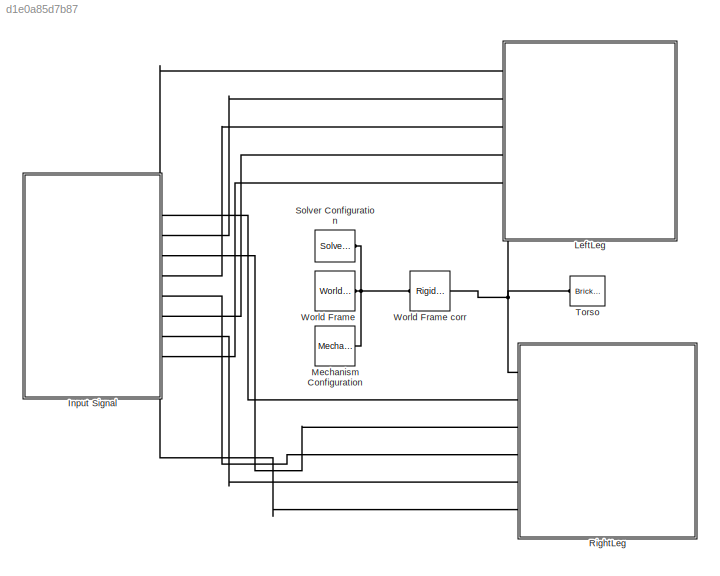
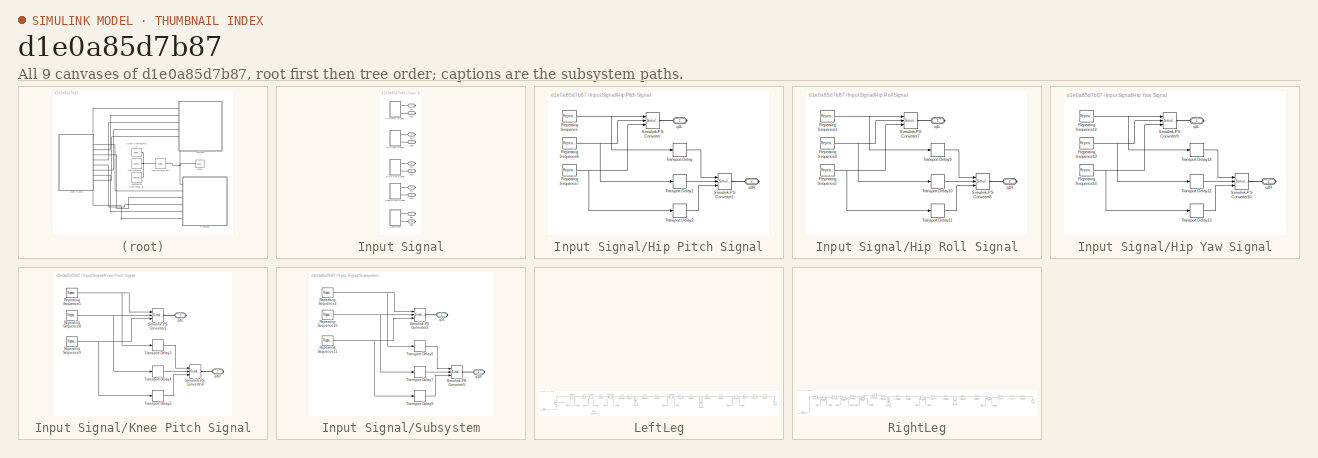
[diagram: thumbnail index - all 9 canvases of the model, root first then tree order]
MODEL slx_d1e0a85d7b87
KIND model
CONFIG AbsTol = auto
CONFIG EnableMultiTasking = off
CONFIG FixedStep = auto
CONFIG MaxStep = auto
CONFIG MinStep = auto
CONFIG RelTol = 1e-3
CONFIG SampleTimeConstraint = Unconstrained
CONFIG Solver = VariableStepAuto
CONFIG SolverName = VariableStepAuto
CONFIG StartTime = 0.0
CONFIG StopTime = 10.0
BLOCK [SubSystem] Input Signal
  Ports = [0, 0, 0, 0, 0, 0, 10]
  RequestExecContextInheritance = off
BLOCK [SubSystem] Input Signal/Hip Pitch Signal
  Ports = [0, 0, 0, 0, 0, 0, 2]
  RequestExecContextInheritance = off
BLOCK [Reference] Input Signal/Hip Pitch Signal/Repeating Sequence  REF=simulink/Sources/Repeating
Sequence
  Ports = [0, 1]
  SourceBlock = simulink/Sources/Repeating\nSequence
  SourceProductBaseCode = SL
  SourceType = Repeating table
BLOCK [Reference] Input Signal/Hip Pitch Signal/Repeating Sequence6  REF=simulink/Sources/Repeating
Sequence
  Ports = [0, 1]
  SourceBlock = simulink/Sources/Repeating\nSequence
  SourceProductBaseCode = SL
  SourceType = Repeating table
BLOCK [Reference] Input Signal/Hip Pitch Signal/Repeating Sequence7  REF=simulink/Sources/Repeating
Sequence
  Ports = [0, 1]
  SourceBlock = simulink/Sources/Repeating\nSequence
  SourceProductBaseCode = SL
  SourceType = Repeating table
BLOCK [Reference] Input Signal/Hip Pitch Signal/Simulink-PS Converter  REF=nesl_utility/Simulink-PS
Converter
  Ports = [3, 0, 0, 0, 0, 0, 1]
  SourceBlock = nesl_utility/Simulink-PS\nConverter
  SourceProductBaseCode = SS
  SourceType = Simulink-PS\nConverter
BLOCK [Reference] Input Signal/Hip Pitch Signal/Simulink-PS Converter1  REF=nesl_utility/Simulink-PS
Converter
  Ports = [3, 0, 0, 0, 0, 0, 1]
  SourceBlock = nesl_utility/Simulink-PS\nConverter
  SourceProductBaseCode = SS
  SourceType = Simulink-PS\nConverter
BLOCK [TransportDelay] Input Signal/Hip Pitch Signal/Transport Delay
  DelayTime = 2*T1
  InitialOutput = q3(1)
  Ports = [1, 1]
BLOCK [TransportDelay] Input Signal/Hip Pitch Signal/Transport Delay1
  DelayTime = 2*T1
  InitialOutput = v3(1)
  Ports = [1, 1]
BLOCK [TransportDelay] Input Signal/Hip Pitch Signal/Transport Delay2
  DelayTime = 2*T1
  InitialOutput = a3(1)
  Ports = [1, 1]
BLOCK [PMIOPort] Input Signal/Hip Pitch Signal/q3L
  Side = Right
BLOCK [PMIOPort] Input Signal/Hip Pitch Signal/q3R
  Port = 2
  Side = Right
BLOCK [SubSystem] Input Signal/Hip Roll Signal
  Ports = [0, 0, 0, 0, 0, 0, 2]
  RequestExecContextInheritance = off
BLOCK [Reference] Input Signal/Hip Roll Signal/Repeating Sequence3  REF=simulink/Sources/Repeating
Sequence
  Ports = [0, 1]
  SourceBlock = simulink/Sources/Repeating\nSequence
  SourceProductBaseCode = SL
  SourceType = Repeating table
BLOCK [Reference] Input Signal/Hip Roll Signal/Repeating Sequence4  REF=simulink/Sources/Repeating
Sequence
  Ports = [0, 1]
  SourceBlock = simulink/Sources/Repeating\nSequence
  SourceProductBaseCode = SL
  SourceType = Repeating table
BLOCK [Reference] Input Signal/Hip Roll Signal/Repeating Sequence5  REF=simulink/Sources/Repeating
Sequence
  Ports = [0, 1]
  SourceBlock = simulink/Sources/Repeating\nSequence
  SourceProductBaseCode = SL
  SourceType = Repeating table
BLOCK [Reference] Input Signal/Hip Roll Signal/Simulink-PS Converter7  REF=nesl_utility/Simulink-PS
Converter
  Ports = [3, 0, 0, 0, 0, 0, 1]
  SourceBlock = nesl_utility/Simulink-PS\nConverter
  SourceProductBaseCode = SS
  SourceType = Simulink-PS\nConverter
BLOCK [Reference] Input Signal/Hip Roll Signal/Simulink-PS Converter8  REF=nesl_utility/Simulink-PS
Converter
  Ports = [3, 0, 0, 0, 0, 0, 1]
  SourceBlock = nesl_utility/Simulink-PS\nConverter
  SourceProductBaseCode = SS
  SourceType = Simulink-PS\nConverter
BLOCK [TransportDelay] Input Signal/Hip Roll Signal/Transport Delay10
  DelayTime = 2*T1
  InitialOutput = v1(1)
  Ports = [1, 1]
BLOCK [TransportDelay] Input Signal/Hip Roll Signal/Transport Delay11
  DelayTime = 2*T1
  InitialOutput = a1(1)
  Ports = [1, 1]
BLOCK [TransportDelay] Input Signal/Hip Roll Signal/Transport Delay9
  DelayTime = 2*T1
  InitialOutput = q1(1)
  Ports = [1, 1]
BLOCK [PMIOPort] Input Signal/Hip Roll Signal/q1L
  Side = Right
BLOCK [PMIOPort] Input Signal/Hip Roll Signal/q1R
  Port = 2
  Side = Right
BLOCK [SubSystem] Input Signal/Hip Yaw Signal
  Ports = [0, 0, 0, 0, 0, 0, 2]
  RequestExecContextInheritance = off
BLOCK [Reference] Input Signal/Hip Yaw Signal/Repeating Sequence12  REF=simulink/Sources/Repeating
Sequence
  Ports = [0, 1]
  SourceBlock = simulink/Sources/Repeating\nSequence
  SourceProductBaseCode = SL
  SourceType = Repeating table
BLOCK [Reference] Input Signal/Hip Yaw Signal/Repeating Sequence13  REF=simulink/Sources/Repeating
Sequence
  Ports = [0, 1]
  SourceBlock = simulink/Sources/Repeating\nSequence
  SourceProductBaseCode = SL
  SourceType = Repeating table
BLOCK [Reference] Input Signal/Hip Yaw Signal/Repeating Sequence14  REF=simulink/Sources/Repeating
Sequence
  Ports = [0, 1]
  SourceBlock = simulink/Sources/Repeating\nSequence
  SourceProductBaseCode = SL
  SourceType = Repeating table
BLOCK [Reference] Input Signal/Hip Yaw Signal/Simulink-PS Converter10  REF=nesl_utility/Simulink-PS
Converter
  Ports = [3, 0, 0, 0, 0, 0, 1]
  SourceBlock = nesl_utility/Simulink-PS\nConverter
  SourceProductBaseCode = SS
  SourceType = Simulink-PS\nConverter
BLOCK [Reference] Input Signal/Hip Yaw Signal/Simulink-PS Converter9  REF=nesl_utility/Simulink-PS
Converter
  Ports = [3, 0, 0, 0, 0, 0, 1]
  SourceBlock = nesl_utility/Simulink-PS\nConverter
  SourceProductBaseCode = SS
  SourceType = Simulink-PS\nConverter
BLOCK [TransportDelay] Input Signal/Hip Yaw Signal/Transport Delay12
  DelayTime = 2*T1
  InitialOutput = v2(1)
  Ports = [1, 1]
BLOCK [TransportDelay] Input Signal/Hip Yaw Signal/Transport Delay13
  DelayTime = 2*T1
  InitialOutput = a2(1)
  Ports = [1, 1]
BLOCK [TransportDelay] Input Signal/Hip Yaw Signal/Transport Delay14
  DelayTime = 2*T1
  InitialOutput = q2(1)
  Ports = [1, 1]
BLOCK [PMIOPort] Input Signal/Hip Yaw Signal/q2L
  Side = Right
BLOCK [PMIOPort] Input Signal/Hip Yaw Signal/q2R
  Port = 2
  Side = Right
BLOCK [SubSystem] Input Signal/Knee Pitch Signal
  Ports = [0, 0, 0, 0, 0, 0, 2]
  RequestExecContextInheritance = off
BLOCK [Reference] Input Signal/Knee Pitch Signal/Repeating Sequence1  REF=simulink/Sources/Repeating
Sequence
  Ports = [0, 1]
  SourceBlock = simulink/Sources/Repeating\nSequence
  SourceProductBaseCode = SL
  SourceType = Repeating table
BLOCK [Reference] Input Signal/Knee Pitch Signal/Repeating Sequence8  REF=simulink/Sources/Repeating
Sequence
  Ports = [0, 1]
  SourceBlock = simulink/Sources/Repeating\nSequence
  SourceProductBaseCode = SL
  SourceType = Repeating table
BLOCK [Reference] Input Signal/Knee Pitch Signal/Repeating Sequence9  REF=simulink/Sources/Repeating
Sequence
  Ports = [0, 1]
  SourceBlock = simulink/Sources/Repeating\nSequence
  SourceProductBaseCode = SL
  SourceType = Repeating table
BLOCK [Reference] Input Signal/Knee Pitch Signal/Simulink-PS Converter2  REF=nesl_utility/Simulink-PS
Converter
  Ports = [3, 0, 0, 0, 0, 0, 1]
  SourceBlock = nesl_utility/Simulink-PS\nConverter
  SourceProductBaseCode = SS
  SourceType = Simulink-PS\nConverter
BLOCK [Reference] Input Signal/Knee Pitch Signal/Simulink-PS Converter4  REF=nesl_utility/Simulink-PS
Converter
  Ports = [3, 0, 0, 0, 0, 0, 1]
  SourceBlock = nesl_utility/Simulink-PS\nConverter
  SourceProductBaseCode = SS
  SourceType = Simulink-PS\nConverter
BLOCK [TransportDelay] Input Signal/Knee Pitch Signal/Transport Delay3
  DelayTime = 2*T1
  InitialOutput = q4(1)
  Ports = [1, 1]
BLOCK [TransportDelay] Input Signal/Knee Pitch Signal/Transport Delay4
  DelayTime = 2*T1
  InitialOutput = v4(1)
  Ports = [1, 1]
BLOCK [TransportDelay] Input Signal/Knee Pitch Signal/Transport Delay5
  DelayTime = 2*T1
  InitialOutput = a4(1)
  Ports = [1, 1]
BLOCK [PMIOPort] Input Signal/Knee Pitch Signal/q4L
  Side = Right
BLOCK [PMIOPort] Input Signal/Knee Pitch Signal/q4R
  Port = 2
  Side = Right
BLOCK [SubSystem] Input Signal/Subsystem
  Ports = [0, 0, 0, 0, 0, 0, 2]
  RequestExecContextInheritance = off
BLOCK [Reference] Input Signal/Subsystem/Repeating Sequence10  REF=simulink/Sources/Repeating
Sequence
  Ports = [0, 1]
  SourceBlock = simulink/Sources/Repeating\nSequence
  SourceProductBaseCode = SL
  SourceType = Repeating table
BLOCK [Reference] Input Signal/Subsystem/Repeating Sequence11  REF=simulink/Sources/Repeating
Sequence
  Ports = [0, 1]
  SourceBlock = simulink/Sources/Repeating\nSequence
  SourceProductBaseCode = SL
  SourceType = Repeating table
BLOCK [Reference] Input Signal/Subsystem/Repeating Sequence2  REF=simulink/Sources/Repeating
Sequence
  Ports = [0, 1]
  SourceBlock = simulink/Sources/Repeating\nSequence
  SourceProductBaseCode = SL
  SourceType = Repeating table
BLOCK [Reference] Input Signal/Subsystem/Simulink-PS Converter3  REF=nesl_utility/Simulink-PS
Converter
  Ports = [3, 0, 0, 0, 0, 0, 1]
  SourceBlock = nesl_utility/Simulink-PS\nConverter
  SourceProductBaseCode = SS
  SourceType = Simulink-PS\nConverter
BLOCK [Reference] Input Signal/Subsystem/Simulink-PS Converter5  REF=nesl_utility/Simulink-PS
Converter
  Ports = [3, 0, 0, 0, 0, 0, 1]
  SourceBlock = nesl_utility/Simulink-PS\nConverter
  SourceProductBaseCode = SS
  SourceType = Simulink-PS\nConverter
BLOCK [TransportDelay] Input Signal/Subsystem/Transport Delay6
  DelayTime = 2*T1
  InitialOutput = q5(1)
  Ports = [1, 1]
BLOCK [TransportDelay] Input Signal/Subsystem/Transport Delay7
  DelayTime = 2*T1
  InitialOutput = v5(1)
  Ports = [1, 1]
BLOCK [TransportDelay] Input Signal/Subsystem/Transport Delay8
  DelayTime = 2*T1
  InitialOutput = a5(1)
  Ports = [1, 1]
BLOCK [PMIOPort] Input Signal/Subsystem/q5L
  Side = Right
BLOCK [PMIOPort] Input Signal/Subsystem/q5R
  Port = 2
  Side = Right
BLOCK [PMIOPort] Input Signal/q1L
  Side = Right
BLOCK [PMIOPort] Input Signal/q1R
  Port = 2
  Side = Right
BLOCK [PMIOPort] Input Signal/q2L
  Port = 3
  Side = Right
BLOCK [PMIOPort] Input Signal/q2R
  Port = 4
  Side = Right
BLOCK [PMIOPort] Input Signal/q3L
  Port = 5
  Side = Right
BLOCK [PMIOPort] Input Signal/q3R
  Port = 6
  Side = Right
BLOCK [PMIOPort] Input Signal/q4L
  Port = 7
  Side = Right
BLOCK [PMIOPort] Input Signal/q4R
  Port = 8
  Side = Right
BLOCK [PMIOPort] Input Signal/q5L
  Port = 9
  Side = Right
BLOCK [PMIOPort] Input Signal/q5R
  Port = 10
  Side = Right
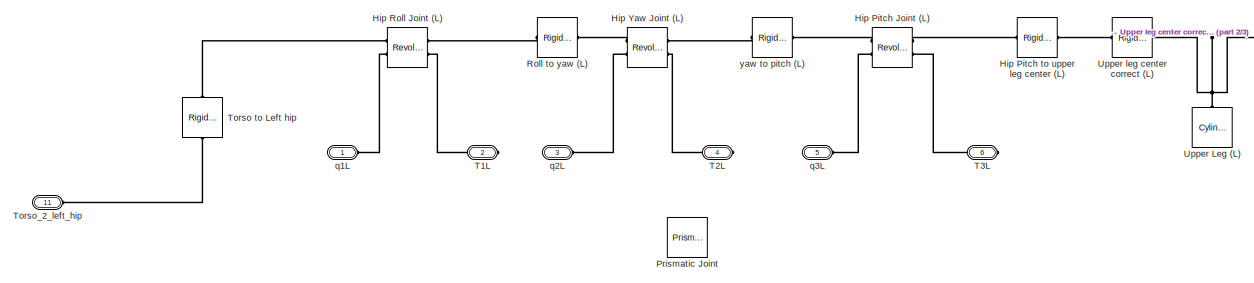
[diagram: LeftLeg - part 1/3, left side, full height]
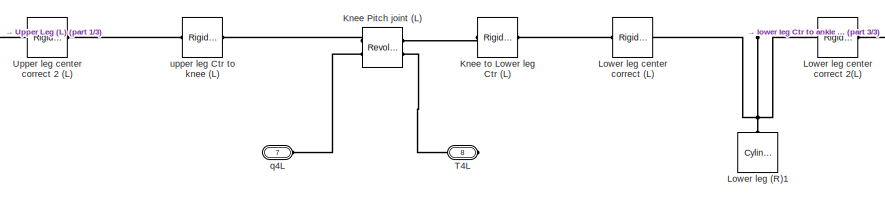
[diagram: LeftLeg - part 2/3, central region]
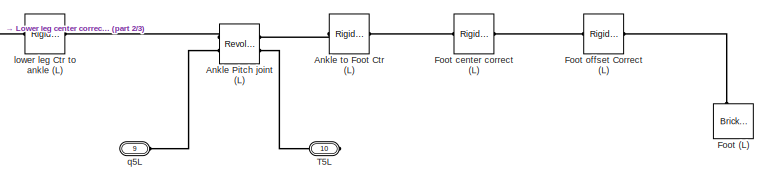
[diagram: LeftLeg - part 3/3, middle right region]
BLOCK [SubSystem] LeftLeg
  Ports = [0, 0, 0, 0, 0, 6, 5]
  RequestExecContextInheritance = off
BLOCK [Reference] LeftLeg/ Ankle Pitch joint (L)  REF=sm_lib/Joints/Revolute Joint
  Ports = [0, 0, 0, 0, 0, 2, 2]
  SourceBlock = sm_lib/Joints/Revolute Joint
  SourceProductBaseCode = MS
  SourceType = Revolute Joint
BLOCK [Reference] LeftLeg/ Hip Pitch Joint (L)  REF=sm_lib/Joints/Revolute Joint
  Ports = [0, 0, 0, 0, 0, 2, 2]
  SourceBlock = sm_lib/Joints/Revolute Joint
  SourceProductBaseCode = MS
  SourceType = Revolute Joint
BLOCK [Reference] LeftLeg/ Hip Roll Joint (L)  REF=sm_lib/Joints/Revolute Joint
  Ports = [0, 0, 0, 0, 0, 2, 2]
  SourceBlock = sm_lib/Joints/Revolute Joint
  SourceProductBaseCode = MS
  SourceType = Revolute Joint
BLOCK [Reference] LeftLeg/ Hip Yaw Joint (L)   REF=sm_lib/Joints/Revolute Joint
  Ports = [0, 0, 0, 0, 0, 2, 2]
  SourceBlock = sm_lib/Joints/Revolute Joint
  SourceProductBaseCode = MS
  SourceType = Revolute Joint
BLOCK [Reference] LeftLeg/ Knee Pitch joint (L)  REF=sm_lib/Joints/Revolute Joint
  Ports = [0, 0, 0, 0, 0, 2, 2]
  SourceBlock = sm_lib/Joints/Revolute Joint
  SourceProductBaseCode = MS
  SourceType = Revolute Joint
BLOCK [Reference] LeftLeg/Ankle to Foot Ctr (L)  REF=sm_lib/Frames and
Transforms/Rigid
Transform
  Ports = [0, 0, 0, 0, 0, 1, 1]
  SourceBlock = sm_lib/Frames and\nTransforms/Rigid\nTransform
  SourceProductBaseCode = MS
  SourceType = Rigid\nTransform
BLOCK [Reference] LeftLeg/Foot (L)  REF=sm_lib/Body Elements/Brick Solid
  NameLocation = right
  Ports = [0, 0, 0, 0, 0, 3, 2]
  SourceBlock = sm_lib/Body Elements/Brick Solid
  SourceProductBaseCode = MS
  SourceType = Brick Solid
BLOCK [Reference] LeftLeg/Foot center correct (L)  REF=sm_lib/Frames and
Transforms/Rigid
Transform
  Ports = [0, 0, 0, 0, 0, 1, 1]
  SourceBlock = sm_lib/Frames and\nTransforms/Rigid\nTransform
  SourceProductBaseCode = MS
  SourceType = Rigid\nTransform
BLOCK [Reference] LeftLeg/Foot offset Correct (L)  REF=sm_lib/Frames and
Transforms/Rigid
Transform
  Ports = [0, 0, 0, 0, 0, 1, 1]
  SourceBlock = sm_lib/Frames and\nTransforms/Rigid\nTransform
  SourceProductBaseCode = MS
  SourceType = Rigid\nTransform
BLOCK [Reference] LeftLeg/Hip Pitch to upper leg center (L)  REF=sm_lib/Frames and
Transforms/Rigid
Transform
  Ports = [0, 0, 0, 0, 0, 1, 1]
  SourceBlock = sm_lib/Frames and\nTransforms/Rigid\nTransform
  SourceProductBaseCode = MS
  SourceType = Rigid\nTransform
BLOCK [Reference] LeftLeg/Knee to Lower leg Ctr (L)  REF=sm_lib/Frames and
Transforms/Rigid
Transform
  Ports = [0, 0, 0, 0, 0, 1, 1]
  SourceBlock = sm_lib/Frames and\nTransforms/Rigid\nTransform
  SourceProductBaseCode = MS
  SourceType = Rigid\nTransform
BLOCK [Reference] LeftLeg/Lower leg (R)1  REF=sm_lib/Body Elements/Cylindrical Solid
  NameLocation = right
  Ports = [0, 0, 0, 0, 0, 0, 1]
  SourceBlock = sm_lib/Body Elements/Cylindrical Solid
  SourceProductBaseCode = MS
  SourceType = Cylindrical Solid
BLOCK [Reference] LeftLeg/Lower leg center correct (L)  REF=sm_lib/Frames and
Transforms/Rigid
Transform
  Ports = [0, 0, 0, 0, 0, 1, 1]
  SourceBlock = sm_lib/Frames and\nTransforms/Rigid\nTransform
  SourceProductBaseCode = MS
  SourceType = Rigid\nTransform
BLOCK [Reference] LeftLeg/Lower leg center correct 2(L)   REF=sm_lib/Frames and
Transforms/Rigid
Transform
  Ports = [0, 0, 0, 0, 0, 1, 1]
  SourceBlock = sm_lib/Frames and\nTransforms/Rigid\nTransform
  SourceProductBaseCode = MS
  SourceType = Rigid\nTransform
BLOCK [Reference] LeftLeg/Prismatic Joint  REF=sm_lib/Joints/Prismatic
Joint
  Ports = [0, 0, 0, 0, 0, 1, 1]
  SourceBlock = sm_lib/Joints/Prismatic\nJoint
  SourceProductBaseCode = MS
  SourceType = Prismatic\nJoint
BLOCK [Reference] LeftLeg/Roll to yaw (L)  REF=sm_lib/Frames and
Transforms/Rigid
Transform
  Ports = [0, 0, 0, 0, 0, 1, 1]
  SourceBlock = sm_lib/Frames and\nTransforms/Rigid\nTransform
  SourceProductBaseCode = MS
  SourceType = Rigid\nTransform
BLOCK [PMIOPort] LeftLeg/T1L
  Port = 2
  Side = Right
BLOCK [PMIOPort] LeftLeg/T2L 
  Port = 4
  Side = Right
BLOCK [PMIOPort] LeftLeg/T3L
  Port = 6
  Side = Right
BLOCK [PMIOPort] LeftLeg/T4L
  Port = 8
  Side = Right
BLOCK [PMIOPort] LeftLeg/T5L
  Port = 10
  Side = Right
BLOCK [Reference] LeftLeg/Torso to Left hip  REF=sm_lib/Frames and
Transforms/Rigid
Transform
  NameLocation = right
  Ports = [0, 0, 0, 0, 0, 1, 1]
  SourceBlock = sm_lib/Frames and\nTransforms/Rigid\nTransform
  SourceProductBaseCode = MS
  SourceType = Rigid\nTransform
BLOCK [PMIOPort] LeftLeg/Torso_2_left_hip
  Port = 11
  Side = Left
BLOCK [Reference] LeftLeg/Upper Leg (L)  REF=sm_lib/Body Elements/Cylindrical Solid
  NameLocation = right
  Ports = [0, 0, 0, 0, 0, 0, 1]
  SourceBlock = sm_lib/Body Elements/Cylindrical Solid
  SourceProductBaseCode = MS
  SourceType = Cylindrical Solid
BLOCK [Reference] LeftLeg/Upper leg center correct (L)  REF=sm_lib/Frames and
Transforms/Rigid
Transform
  Ports = [0, 0, 0, 0, 0, 1, 1]
  SourceBlock = sm_lib/Frames and\nTransforms/Rigid\nTransform
  SourceProductBaseCode = MS
  SourceType = Rigid\nTransform
BLOCK [Reference] LeftLeg/Upper leg center correct 2 (L)   REF=sm_lib/Frames and
Transforms/Rigid
Transform
  Ports = [0, 0, 0, 0, 0, 1, 1]
  SourceBlock = sm_lib/Frames and\nTransforms/Rigid\nTransform
  SourceProductBaseCode = MS
  SourceType = Rigid\nTransform
BLOCK [Reference] LeftLeg/lower leg Ctr to ankle (L)  REF=sm_lib/Frames and
Transforms/Rigid
Transform
  Ports = [0, 0, 0, 0, 0, 1, 1]
  SourceBlock = sm_lib/Frames and\nTransforms/Rigid\nTransform
  SourceProductBaseCode = MS
  SourceType = Rigid\nTransform
BLOCK [PMIOPort] LeftLeg/q1L
  Side = Left
BLOCK [PMIOPort] LeftLeg/q2L
  Port = 3
  Side = Left
BLOCK [PMIOPort] LeftLeg/q3L
  Port = 5
  Side = Left
BLOCK [PMIOPort] LeftLeg/q4L
  Port = 7
  Side = Left
BLOCK [PMIOPort] LeftLeg/q5L
  Port = 9
  Side = Left
BLOCK [Reference] LeftLeg/upper leg Ctr to knee (L)  REF=sm_lib/Frames and
Transforms/Rigid
Transform
  Ports = [0, 0, 0, 0, 0, 1, 1]
  SourceBlock = sm_lib/Frames and\nTransforms/Rigid\nTransform
  SourceProductBaseCode = MS
  SourceType = Rigid\nTransform
BLOCK [Reference] LeftLeg/yaw to pitch (L)  REF=sm_lib/Frames and
Transforms/Rigid
Transform
  Ports = [0, 0, 0, 0, 0, 1, 1]
  SourceBlock = sm_lib/Frames and\nTransforms/Rigid\nTransform
  SourceProductBaseCode = MS
  SourceType = Rigid\nTransform
BLOCK [Reference] Mechanism Configuration  REF=sm_lib/Utilities/Mechanism
Configuration
  Ports = [0, 0, 0, 0, 0, 0, 1]
  SourceBlock = sm_lib/Utilities/Mechanism\nConfiguration
  SourceProductBaseCode = MS
  SourceType = Mechanism\nConfiguration
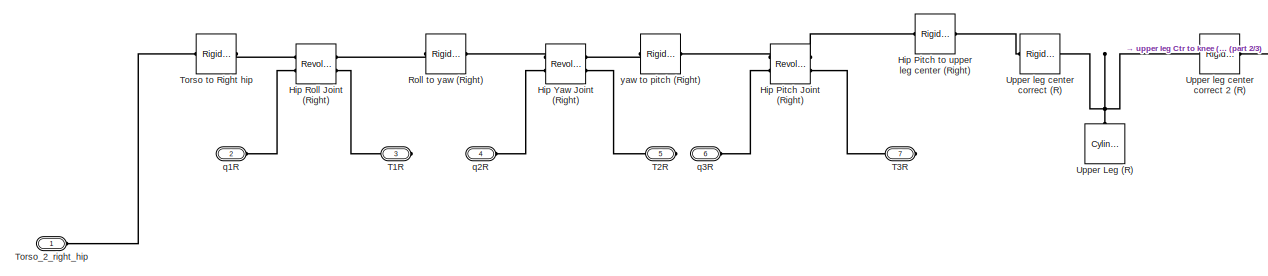
[diagram: RightLeg - part 1/3, left side, full height]
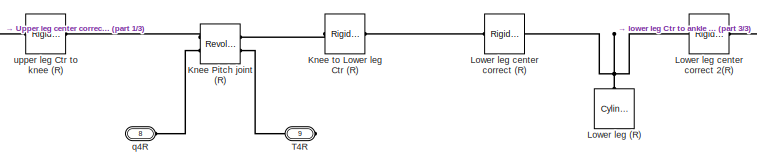
[diagram: RightLeg - part 2/3, central region]
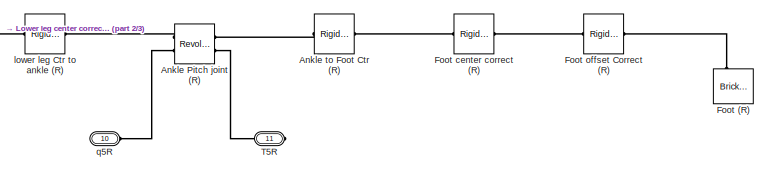
[diagram: RightLeg - part 3/3, middle right region]
BLOCK [SubSystem] RightLeg
  Ports = [0, 0, 0, 0, 0, 6, 5]
  RequestExecContextInheritance = off
BLOCK [Reference] RightLeg/  Hip Pitch Joint (Right)  REF=sm_lib/Joints/Revolute Joint
  Ports = [0, 0, 0, 0, 0, 2, 2]
  SourceBlock = sm_lib/Joints/Revolute Joint
  SourceProductBaseCode = MS
  SourceType = Revolute Joint
BLOCK [Reference] RightLeg/  Hip Yaw Joint (Right)   REF=sm_lib/Joints/Revolute Joint
  Ports = [0, 0, 0, 0, 0, 2, 2]
  SourceBlock = sm_lib/Joints/Revolute Joint
  SourceProductBaseCode = MS
  SourceType = Revolute Joint
BLOCK [Reference] RightLeg/ Ankle Pitch joint (R)  REF=sm_lib/Joints/Revolute Joint
  Ports = [0, 0, 0, 0, 0, 2, 2]
  SourceBlock = sm_lib/Joints/Revolute Joint
  SourceProductBaseCode = MS
  SourceType = Revolute Joint
BLOCK [Reference] RightLeg/ Hip Roll Joint (Right)  REF=sm_lib/Joints/Revolute Joint
  Ports = [0, 0, 0, 0, 0, 2, 2]
  SourceBlock = sm_lib/Joints/Revolute Joint
  SourceProductBaseCode = MS
  SourceType = Revolute Joint
BLOCK [Reference] RightLeg/ Knee Pitch joint (R)  REF=sm_lib/Joints/Revolute Joint
  Ports = [0, 0, 0, 0, 0, 2, 2]
  SourceBlock = sm_lib/Joints/Revolute Joint
  SourceProductBaseCode = MS
  SourceType = Revolute Joint
BLOCK [Reference] RightLeg/Ankle to Foot Ctr (R)  REF=sm_lib/Frames and
Transforms/Rigid
Transform
  Ports = [0, 0, 0, 0, 0, 1, 1]
  SourceBlock = sm_lib/Frames and\nTransforms/Rigid\nTransform
  SourceProductBaseCode = MS
  SourceType = Rigid\nTransform
BLOCK [Reference] RightLeg/Foot (R)  REF=sm_lib/Body Elements/Brick Solid
  NameLocation = right
  Ports = [0, 0, 0, 0, 0, 3, 2]
  SourceBlock = sm_lib/Body Elements/Brick Solid
  SourceProductBaseCode = MS
  SourceType = Brick Solid
BLOCK [Reference] RightLeg/Foot center correct (R)  REF=sm_lib/Frames and
Transforms/Rigid
Transform
  Ports = [0, 0, 0, 0, 0, 1, 1]
  SourceBlock = sm_lib/Frames and\nTransforms/Rigid\nTransform
  SourceProductBaseCode = MS
  SourceType = Rigid\nTransform
BLOCK [Reference] RightLeg/Foot offset Correct (R)  REF=sm_lib/Frames and
Transforms/Rigid
Transform
  Ports = [0, 0, 0, 0, 0, 1, 1]
  SourceBlock = sm_lib/Frames and\nTransforms/Rigid\nTransform
  SourceProductBaseCode = MS
  SourceType = Rigid\nTransform
BLOCK [Reference] RightLeg/Hip Pitch to upper leg center (Right)  REF=sm_lib/Frames and
Transforms/Rigid
Transform
  Ports = [0, 0, 0, 0, 0, 1, 1]
  SourceBlock = sm_lib/Frames and\nTransforms/Rigid\nTransform
  SourceProductBaseCode = MS
  SourceType = Rigid\nTransform
BLOCK [Reference] RightLeg/Knee to Lower leg Ctr (R)  REF=sm_lib/Frames and
Transforms/Rigid
Transform
  Ports = [0, 0, 0, 0, 0, 1, 1]
  SourceBlock = sm_lib/Frames and\nTransforms/Rigid\nTransform
  SourceProductBaseCode = MS
  SourceType = Rigid\nTransform
BLOCK [Reference] RightLeg/Lower leg (R)  REF=sm_lib/Body Elements/Cylindrical Solid
  NameLocation = right
  Ports = [0, 0, 0, 0, 0, 0, 1]
  SourceBlock = sm_lib/Body Elements/Cylindrical Solid
  SourceProductBaseCode = MS
  SourceType = Cylindrical Solid
BLOCK [Reference] RightLeg/Lower leg center correct (R)  REF=sm_lib/Frames and
Transforms/Rigid
Transform
  Ports = [0, 0, 0, 0, 0, 1, 1]
  SourceBlock = sm_lib/Frames and\nTransforms/Rigid\nTransform
  SourceProductBaseCode = MS
  SourceType = Rigid\nTransform
BLOCK [Reference] RightLeg/Lower leg center correct 2(R)   REF=sm_lib/Frames and
Transforms/Rigid
Transform
  Ports = [0, 0, 0, 0, 0, 1, 1]
  SourceBlock = sm_lib/Frames and\nTransforms/Rigid\nTransform
  SourceProductBaseCode = MS
  SourceType = Rigid\nTransform
BLOCK [Reference] RightLeg/Roll to yaw (Right)  REF=sm_lib/Frames and
Transforms/Rigid
Transform
  Ports = [0, 0, 0, 0, 0, 1, 1]
  SourceBlock = sm_lib/Frames and\nTransforms/Rigid\nTransform
  SourceProductBaseCode = MS
  SourceType = Rigid\nTransform
BLOCK [PMIOPort] RightLeg/T1R
  Port = 3
  Side = Right
BLOCK [PMIOPort] RightLeg/T2R
  Port = 5
  Side = Right
BLOCK [PMIOPort] RightLeg/T3R
  Port = 7
  Side = Right
BLOCK [PMIOPort] RightLeg/T4R
  Port = 9
  Side = Right
BLOCK [PMIOPort] RightLeg/T5R
  Port = 11
  Side = Right
BLOCK [Reference] RightLeg/Torso to Right hip  REF=sm_lib/Frames and
Transforms/Rigid
Transform
  Ports = [0, 0, 0, 0, 0, 1, 1]
  SourceBlock = sm_lib/Frames and\nTransforms/Rigid\nTransform
  SourceProductBaseCode = MS
  SourceType = Rigid\nTransform
BLOCK [PMIOPort] RightLeg/Torso_2_right_hip
  Side = Left
BLOCK [Reference] RightLeg/Upper Leg (R)  REF=sm_lib/Body Elements/Cylindrical Solid
  NameLocation = right
  Ports = [0, 0, 0, 0, 0, 0, 1]
  SourceBlock = sm_lib/Body Elements/Cylindrical Solid
  SourceProductBaseCode = MS
  SourceType = Cylindrical Solid
BLOCK [Reference] RightLeg/Upper leg center correct (R)   REF=sm_lib/Frames and
Transforms/Rigid
Transform
  Ports = [0, 0, 0, 0, 0, 1, 1]
  SourceBlock = sm_lib/Frames and\nTransforms/Rigid\nTransform
  SourceProductBaseCode = MS
  SourceType = Rigid\nTransform
BLOCK [Reference] RightLeg/Upper leg center correct 2 (R)   REF=sm_lib/Frames and
Transforms/Rigid
Transform
  Ports = [0, 0, 0, 0, 0, 1, 1]
  SourceBlock = sm_lib/Frames and\nTransforms/Rigid\nTransform
  SourceProductBaseCode = MS
  SourceType = Rigid\nTransform
BLOCK [Reference] RightLeg/lower leg Ctr to ankle (R)  REF=sm_lib/Frames and
Transforms/Rigid
Transform
  Ports = [0, 0, 0, 0, 0, 1, 1]
  SourceBlock = sm_lib/Frames and\nTransforms/Rigid\nTransform
  SourceProductBaseCode = MS
  SourceType = Rigid\nTransform
BLOCK [PMIOPort] RightLeg/q1R
  Port = 2
  Side = Left
BLOCK [PMIOPort] RightLeg/q2R
  Port = 4
  Side = Left
BLOCK [PMIOPort] RightLeg/q3R
  Port = 6
  Side = Left
BLOCK [PMIOPort] RightLeg/q4R
  Port = 8
  Side = Left
BLOCK [PMIOPort] RightLeg/q5R
  Port = 10
  Side = Left
BLOCK [Reference] RightLeg/upper leg Ctr to knee (R)  REF=sm_lib/Frames and
Transforms/Rigid
Transform
  Ports = [0, 0, 0, 0, 0, 1, 1]
  SourceBlock = sm_lib/Frames and\nTransforms/Rigid\nTransform
  SourceProductBaseCode = MS
  SourceType = Rigid\nTransform
BLOCK [Reference] RightLeg/yaw to pitch (Right)  REF=sm_lib/Frames and
Transforms/Rigid
Transform
  Ports = [0, 0, 0, 0, 0, 1, 1]
  SourceBlock = sm_lib/Frames and\nTransforms/Rigid\nTransform
  SourceProductBaseCode = MS
  SourceType = Rigid\nTransform
BLOCK [Reference] Solver Configuration  REF=nesl_utility/Solver
Configuration
  Ports = [0, 0, 0, 0, 0, 0, 1]
  SourceBlock = nesl_utility/Solver\nConfiguration
  SourceProductBaseCode = SS
  SourceType = Solver\nConfiguration
BLOCK [Reference] Torso  REF=sm_lib/Body Elements/Brick Solid
  NameLocation = top
  Ports = [0, 0, 0, 0, 0, 0, 1]
  SourceBlock = sm_lib/Body Elements/Brick Solid
  SourceProductBaseCode = MS
  SourceType = Brick Solid
BLOCK [Reference] World Frame  REF=sm_lib/Frames and
Transforms/World Frame
  Ports = [0, 0, 0, 0, 0, 0, 1]
  SourceBlock = sm_lib/Frames and\nTransforms/World Frame
  SourceProductBaseCode = MS
  SourceType = World Frame
BLOCK [Reference] World Frame corr  REF=sm_lib/Frames and
Transforms/Rigid
Transform
  Ports = [0, 0, 0, 0, 0, 1, 1]
  SourceBlock = sm_lib/Frames and\nTransforms/Rigid\nTransform
  SourceProductBaseCode = MS
  SourceType = Rigid\nTransform
NET Input Signal/Hip Pitch Signal/Repeating Sequence6:1 -> Input Signal/Hip Pitch Signal/Simulink-PS Converter:2, Input Signal/Hip Pitch Signal/Transport Delay1:1
NET Input Signal/Hip Pitch Signal/Repeating Sequence7:1 -> Input Signal/Hip Pitch Signal/Simulink-PS Converter:3, Input Signal/Hip Pitch Signal/Transport Delay2:1
NET Input Signal/Hip Pitch Signal/Repeating Sequence:1 -> Input Signal/Hip Pitch Signal/Simulink-PS Converter:1, Input Signal/Hip Pitch Signal/Transport Delay:1
LINE Input Signal/Hip Pitch Signal/Transport Delay1:1 -> Input Signal/Hip Pitch Signal/Simulink-PS Converter1:2
LINE Input Signal/Hip Pitch Signal/Transport Delay2:1 -> Input Signal/Hip Pitch Signal/Simulink-PS Converter1:3
LINE Input Signal/Hip Pitch Signal/Transport Delay:1 -> Input Signal/Hip Pitch Signal/Simulink-PS Converter1:1
NET Input Signal/Hip Roll Signal/Repeating Sequence3:1 -> Input Signal/Hip Roll Signal/Simulink-PS Converter7:1, Input Signal/Hip Roll Signal/Transport Delay9:1
NET Input Signal/Hip Roll Signal/Repeating Sequence4:1 -> Input Signal/Hip Roll Signal/Simulink-PS Converter7:2, Input Signal/Hip Roll Signal/Transport Delay10:1
NET Input Signal/Hip Roll Signal/Repeating Sequence5:1 -> Input Signal/Hip Roll Signal/Simulink-PS Converter7:3, Input Signal/Hip Roll Signal/Transport Delay11:1
LINE Input Signal/Hip Roll Signal/Transport Delay10:1 -> Input Signal/Hip Roll Signal/Simulink-PS Converter8:2
LINE Input Signal/Hip Roll Signal/Transport Delay11:1 -> Input Signal/Hip Roll Signal/Simulink-PS Converter8:3
LINE Input Signal/Hip Roll Signal/Transport Delay9:1 -> Input Signal/Hip Roll Signal/Simulink-PS Converter8:1
NET Input Signal/Hip Yaw Signal/Repeating Sequence12:1 -> Input Signal/Hip Yaw Signal/Simulink-PS Converter9:1, Input Signal/Hip Yaw Signal/Transport Delay14:1
NET Input Signal/Hip Yaw Signal/Repeating Sequence13:1 -> Input Signal/Hip Yaw Signal/Simulink-PS Converter9:2, Input Signal/Hip Yaw Signal/Transport Delay12:1
NET Input Signal/Hip Yaw Signal/Repeating Sequence14:1 -> Input Signal/Hip Yaw Signal/Simulink-PS Converter9:3, Input Signal/Hip Yaw Signal/Transport Delay13:1
LINE Input Signal/Hip Yaw Signal/Transport Delay12:1 -> Input Signal/Hip Yaw Signal/Simulink-PS Converter10:2
LINE Input Signal/Hip Yaw Signal/Transport Delay13:1 -> Input Signal/Hip Yaw Signal/Simulink-PS Converter10:3
LINE Input Signal/Hip Yaw Signal/Transport Delay14:1 -> Input Signal/Hip Yaw Signal/Simulink-PS Converter10:1
NET Input Signal/Knee Pitch Signal/Repeating Sequence1:1 -> Input Signal/Knee Pitch Signal/Simulink-PS Converter2:1, Input Signal/Knee Pitch Signal/Transport Delay3:1
NET Input Signal/Knee Pitch Signal/Repeating Sequence8:1 -> Input Signal/Knee Pitch Signal/Simulink-PS Converter2:2, Input Signal/Knee Pitch Signal/Transport Delay4:1
NET Input Signal/Knee Pitch Signal/Repeating Sequence9:1 -> Input Signal/Knee Pitch Signal/Simulink-PS Converter2:3, Input Signal/Knee Pitch Signal/Transport Delay5:1
LINE Input Signal/Knee Pitch Signal/Transport Delay3:1 -> Input Signal/Knee Pitch Signal/Simulink-PS Converter4:1
LINE Input Signal/Knee Pitch Signal/Transport Delay4:1 -> Input Signal/Knee Pitch Signal/Simulink-PS Converter4:2
LINE Input Signal/Knee Pitch Signal/Transport Delay5:1 -> Input Signal/Knee Pitch Signal/Simulink-PS Converter4:3
NET Input Signal/Subsystem/Repeating Sequence10:1 -> Input Signal/Subsystem/Simulink-PS Converter3:2, Input Signal/Subsystem/Transport Delay7:1
NET Input Signal/Subsystem/Repeating Sequence11:1 -> Input Signal/Subsystem/Simulink-PS Converter3:3, Input Signal/Subsystem/Transport Delay8:1
NET Input Signal/Subsystem/Repeating Sequence2:1 -> Input Signal/Subsystem/Simulink-PS Converter3:1, Input Signal/Subsystem/Transport Delay6:1
LINE Input Signal/Subsystem/Transport Delay6:1 -> Input Signal/Subsystem/Simulink-PS Converter5:1
LINE Input Signal/Subsystem/Transport Delay7:1 -> Input Signal/Subsystem/Simulink-PS Converter5:2
LINE Input Signal/Subsystem/Transport Delay8:1 -> Input Signal/Subsystem/Simulink-PS Converter5:3
PLINE Input Signal/Hip Pitch Signal/Simulink-PS Converter1:RConn1 -- Input Signal/Hip Pitch Signal/q3R:RConn1
PLINE Input Signal/Hip Pitch Signal/Simulink-PS Converter:RConn1 -- Input Signal/Hip Pitch Signal/q3L:RConn1
PLINE Input Signal/Hip Pitch Signal:RConn1 -- Input Signal/q3L:RConn1
PLINE Input Signal/Hip Pitch Signal:RConn2 -- Input Signal/q3R:RConn1
PLINE Input Signal/Hip Roll Signal/Simulink-PS Converter7:RConn1 -- Input Signal/Hip Roll Signal/q1L:RConn1
PLINE Input Signal/Hip Roll Signal/Simulink-PS Converter8:RConn1 -- Input Signal/Hip Roll Signal/q1R:RConn1
PLINE Input Signal/Hip Roll Signal:RConn1 -- Input Signal/q1L:RConn1
PLINE Input Signal/Hip Roll Signal:RConn2 -- Input Signal/q1R:RConn1
PLINE Input Signal/Hip Yaw Signal/Simulink-PS Converter10:RConn1 -- Input Signal/Hip Yaw Signal/q2R:RConn1
PLINE Input Signal/Hip Yaw Signal/Simulink-PS Converter9:RConn1 -- Input Signal/Hip Yaw Signal/q2L:RConn1
PLINE Input Signal/Hip Yaw Signal:RConn1 -- Input Signal/q2L:RConn1
PLINE Input Signal/Hip Yaw Signal:RConn2 -- Input Signal/q2R:RConn1
PLINE Input Signal/Knee Pitch Signal/Simulink-PS Converter2:RConn1 -- Input Signal/Knee Pitch Signal/q4L:RConn1
PLINE Input Signal/Knee Pitch Signal/Simulink-PS Converter4:RConn1 -- Input Signal/Knee Pitch Signal/q4R:RConn1
PLINE Input Signal/Knee Pitch Signal:RConn1 -- Input Signal/q4L:RConn1
PLINE Input Signal/Knee Pitch Signal:RConn2 -- Input Signal/q4R:RConn1
PLINE Input Signal/Subsystem/Simulink-PS Converter3:RConn1 -- Input Signal/Subsystem/q5L:RConn1
PLINE Input Signal/Subsystem/Simulink-PS Converter5:RConn1 -- Input Signal/Subsystem/q5R:RConn1
PLINE Input Signal/Subsystem:RConn1 -- Input Signal/q5L:RConn1
PLINE Input Signal/Subsystem:RConn2 -- Input Signal/q5R:RConn1
PLINE Input Signal:RConn1 -- LeftLeg:LConn1
PLINE Input Signal:RConn10 -- RightLeg:LConn6
PLINE Input Signal:RConn2 -- RightLeg:LConn2
PLINE Input Signal:RConn3 -- LeftLeg:LConn2
PLINE Input Signal:RConn4 -- RightLeg:LConn3
PLINE Input Signal:RConn5 -- LeftLeg:LConn3
PLINE Input Signal:RConn6 -- RightLeg:LConn4
PLINE Input Signal:RConn7 -- LeftLeg:LConn4
PLINE Input Signal:RConn8 -- RightLeg:LConn5
PLINE Input Signal:RConn9 -- LeftLeg:LConn5
PLINE LeftLeg/ Ankle Pitch joint (L):LConn1 -- LeftLeg/lower leg Ctr to ankle (L):RConn1
PLINE LeftLeg/ Ankle Pitch joint (L):LConn2 -- LeftLeg/q5L:RConn1
PLINE LeftLeg/ Ankle Pitch joint (L):RConn1 -- LeftLeg/Ankle to Foot Ctr (L):LConn1
PLINE LeftLeg/ Ankle Pitch joint (L):RConn2 -- LeftLeg/T5L:RConn1
PLINE LeftLeg/ Hip Pitch Joint (L):LConn1 -- LeftLeg/yaw to pitch (L):RConn1
PLINE LeftLeg/ Hip Pitch Joint (L):LConn2 -- LeftLeg/q3L:RConn1
PLINE LeftLeg/ Hip Pitch Joint (L):RConn1 -- LeftLeg/Hip Pitch to upper leg center (L):LConn1
PLINE LeftLeg/ Hip Pitch Joint (L):RConn2 -- LeftLeg/T3L:RConn1
PLINE LeftLeg/ Hip Roll Joint (L):LConn1 -- LeftLeg/Torso to Left hip:RConn1
PLINE LeftLeg/ Hip Roll Joint (L):LConn2 -- LeftLeg/q1L:RConn1
PLINE LeftLeg/ Hip Roll Joint (L):RConn1 -- LeftLeg/Roll to yaw (L):LConn1
PLINE LeftLeg/ Hip Roll Joint (L):RConn2 -- LeftLeg/T1L:RConn1
PLINE LeftLeg/ Hip Yaw Joint (L) :LConn1 -- LeftLeg/Roll to yaw (L):RConn1
PLINE LeftLeg/ Hip Yaw Joint (L) :LConn2 -- LeftLeg/q2L:RConn1
PLINE LeftLeg/ Hip Yaw Joint (L) :RConn1 -- LeftLeg/yaw to pitch (L):LConn1
PLINE LeftLeg/ Hip Yaw Joint (L) :RConn2 -- LeftLeg/T2L :RConn1
PLINE LeftLeg/ Knee Pitch joint (L):LConn1 -- LeftLeg/upper leg Ctr to knee (L):RConn1
PLINE LeftLeg/ Knee Pitch joint (L):LConn2 -- LeftLeg/q4L:RConn1
PLINE LeftLeg/ Knee Pitch joint (L):RConn1 -- LeftLeg/Knee to Lower leg Ctr (L):LConn1
PLINE LeftLeg/ Knee Pitch joint (L):RConn2 -- LeftLeg/T4L:RConn1
PLINE LeftLeg/Ankle to Foot Ctr (L):RConn1 -- LeftLeg/Foot center correct (L):LConn1
PLINE LeftLeg/Foot (L):RConn1 -- LeftLeg/Foot offset Correct (L):RConn1
PLINE LeftLeg/Foot center correct (L):RConn1 -- LeftLeg/Foot offset Correct (L):LConn1
PLINE LeftLeg/Hip Pitch to upper leg center (L):RConn1 -- LeftLeg/Upper leg center correct (L):LConn1
PLINE LeftLeg/Knee to Lower leg Ctr (L):RConn1 -- LeftLeg/Lower leg center correct (L):LConn1
PNET net1: LeftLeg/Lower leg (R)1:RConn1 -- LeftLeg/Lower leg center correct (L):RConn1 -- LeftLeg/Lower leg center correct 2(L) :LConn1
PLINE LeftLeg/Lower leg center correct 2(L) :RConn1 -- LeftLeg/lower leg Ctr to ankle (L):LConn1
PLINE LeftLeg/Torso to Left hip:LConn1 -- LeftLeg/Torso_2_left_hip:RConn1
PNET net2: LeftLeg/Upper Leg (L):RConn1 -- LeftLeg/Upper leg center correct (L):RConn1 -- LeftLeg/Upper leg center correct 2 (L) :LConn1
PLINE LeftLeg/Upper leg center correct 2 (L) :RConn1 -- LeftLeg/upper leg Ctr to knee (L):LConn1
PNET net3: LeftLeg:LConn6 -- RightLeg:LConn1 -- Torso:RConn1 -- World Frame corr:RConn1
PNET net4: Mechanism Configuration:RConn1 -- Solver Configuration:RConn1 -- World Frame corr:LConn1 -- World Frame:RConn1
PLINE RightLeg/  Hip Pitch Joint (Right):LConn1 -- RightLeg/yaw to pitch (Right):RConn1
PLINE RightLeg/  Hip Pitch Joint (Right):LConn2 -- RightLeg/q3R:RConn1
PLINE RightLeg/  Hip Pitch Joint (Right):RConn1 -- RightLeg/Hip Pitch to upper leg center (Right):LConn1
PLINE RightLeg/  Hip Pitch Joint (Right):RConn2 -- RightLeg/T3R:RConn1
PLINE RightLeg/  Hip Yaw Joint (Right) :LConn1 -- RightLeg/Roll to yaw (Right):RConn1
PLINE RightLeg/  Hip Yaw Joint (Right) :LConn2 -- RightLeg/q2R:RConn1
PLINE RightLeg/  Hip Yaw Joint (Right) :RConn1 -- RightLeg/yaw to pitch (Right):LConn1
PLINE RightLeg/  Hip Yaw Joint (Right) :RConn2 -- RightLeg/T2R:RConn1
PLINE RightLeg/ Ankle Pitch joint (R):LConn1 -- RightLeg/lower leg Ctr to ankle (R):RConn1
PLINE RightLeg/ Ankle Pitch joint (R):LConn2 -- RightLeg/q5R:RConn1
PLINE RightLeg/ Ankle Pitch joint (R):RConn1 -- RightLeg/Ankle to Foot Ctr (R):LConn1
PLINE RightLeg/ Ankle Pitch joint (R):RConn2 -- RightLeg/T5R:RConn1
PLINE RightLeg/ Hip Roll Joint (Right):LConn1 -- RightLeg/Torso to Right hip:RConn1
PLINE RightLeg/ Hip Roll Joint (Right):LConn2 -- RightLeg/q1R:RConn1
PLINE RightLeg/ Hip Roll Joint (Right):RConn1 -- RightLeg/Roll to yaw (Right):LConn1
PLINE RightLeg/ Hip Roll Joint (Right):RConn2 -- RightLeg/T1R:RConn1
PLINE RightLeg/ Knee Pitch joint (R):LConn1 -- RightLeg/upper leg Ctr to knee (R):RConn1
PLINE RightLeg/ Knee Pitch joint (R):LConn2 -- RightLeg/q4R:RConn1
PLINE RightLeg/ Knee Pitch joint (R):RConn1 -- RightLeg/Knee to Lower leg Ctr (R):LConn1
PLINE RightLeg/ Knee Pitch joint (R):RConn2 -- RightLeg/T4R:RConn1
PLINE RightLeg/Ankle to Foot Ctr (R):RConn1 -- RightLeg/Foot center correct (R):LConn1
PLINE RightLeg/Foot (R):RConn1 -- RightLeg/Foot offset Correct (R):RConn1
PLINE RightLeg/Foot center correct (R):RConn1 -- RightLeg/Foot offset Correct (R):LConn1
PLINE RightLeg/Hip Pitch to upper leg center (Right):RConn1 -- RightLeg/Upper leg center correct (R) :LConn1
PLINE RightLeg/Knee to Lower leg Ctr (R):RConn1 -- RightLeg/Lower leg center correct (R):LConn1
PNET net5: RightLeg/Lower leg (R):RConn1 -- RightLeg/Lower leg center correct (R):RConn1 -- RightLeg/Lower leg center correct 2(R) :LConn1
PLINE RightLeg/Lower leg center correct 2(R) :RConn1 -- RightLeg/lower leg Ctr to ankle (R):LConn1
PLINE RightLeg/Torso to Right hip:LConn1 -- RightLeg/Torso_2_right_hip:RConn1
PNET net6: RightLeg/Upper Leg (R):RConn1 -- RightLeg/Upper leg center correct (R) :RConn1 -- RightLeg/Upper leg center correct 2 (R) :LConn1
PLINE RightLeg/Upper leg center correct 2 (R) :RConn1 -- RightLeg/upper leg Ctr to knee (R):LConn1
note: NET lines group one-source signal fan-out (src -> all destinations, sorted); 1:1 wires keep LINE; PNET lines group multi-terminal physical nets as a canonical sorted terminal list (undirected conserving connections); 2-terminal nets keep the pairwise PLINE form
